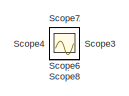
[diagram: root canvas - part 1/3, top left region]
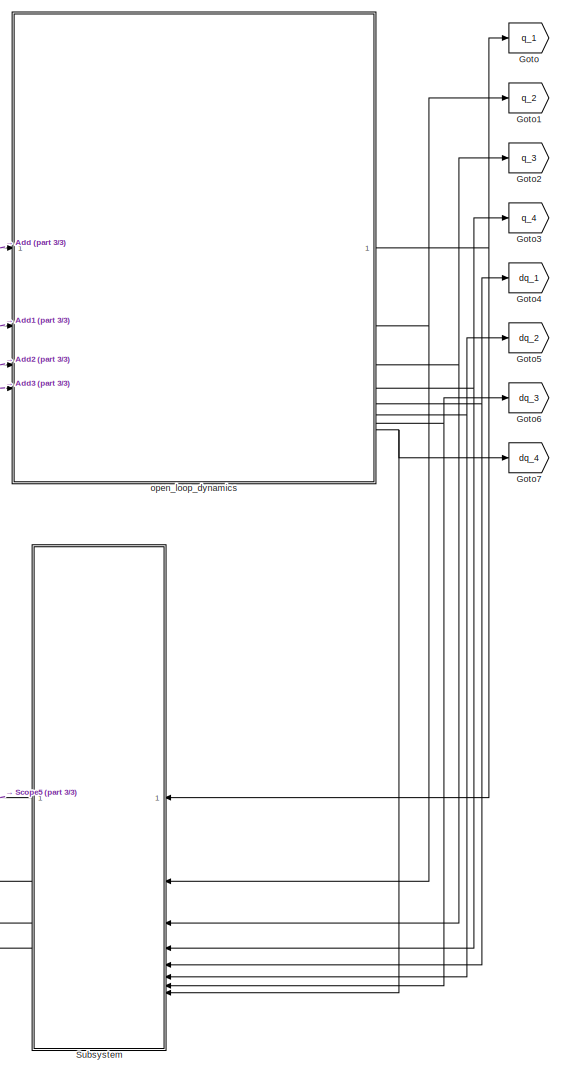
[diagram: root canvas - part 2/3, bottom right region]
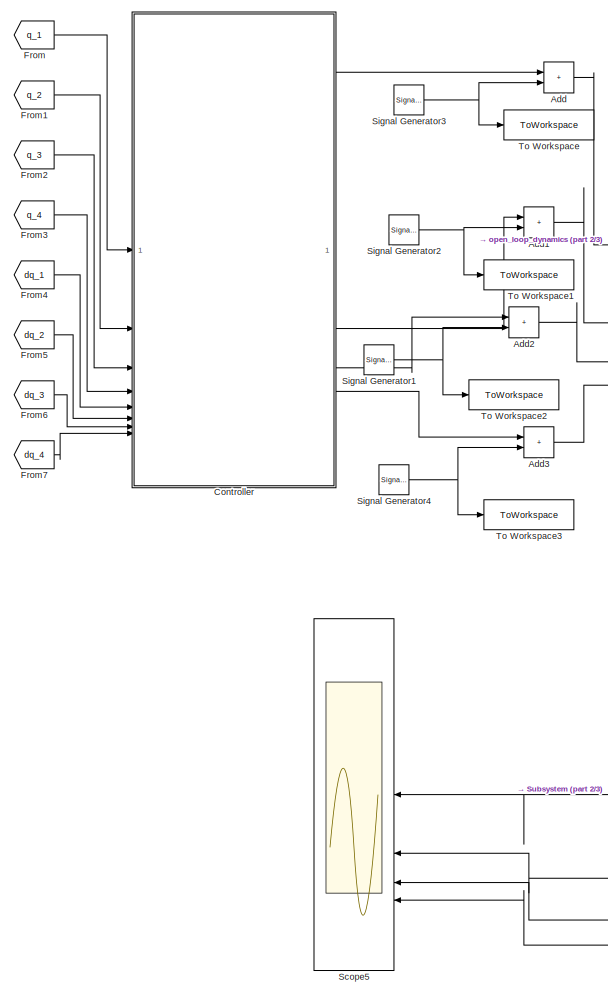
[diagram: root canvas - part 3/3, bottom left region]
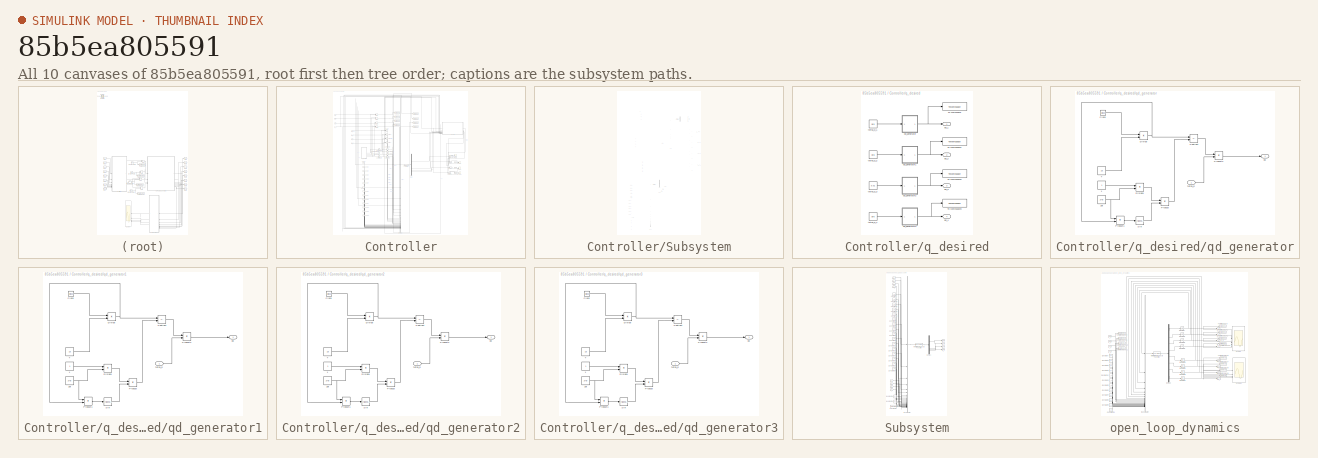
[diagram: thumbnail index - all 10 canvases of the model, root first then tree order]
MODEL slx_85b5ea805591
KIND model
CONFIG AbsTol = auto
CONFIG EnableMultiTasking = off
CONFIG FixedStep = auto
CONFIG MaxStep = auto
CONFIG MinStep = auto
CONFIG RelTol = 1e-3
CONFIG SampleTimeConstraint = Unconstrained
CONFIG SolverName = VariableStepAuto
CONFIG StartTime = 0.0
CONFIG StopTime = 10
BLOCK [Sum] Add
  IconShape = rectangular
BLOCK [Sum] Add1
  IconShape = rectangular
BLOCK [Sum] Add2
  IconShape = rectangular
BLOCK [Sum] Add3
  IconShape = rectangular
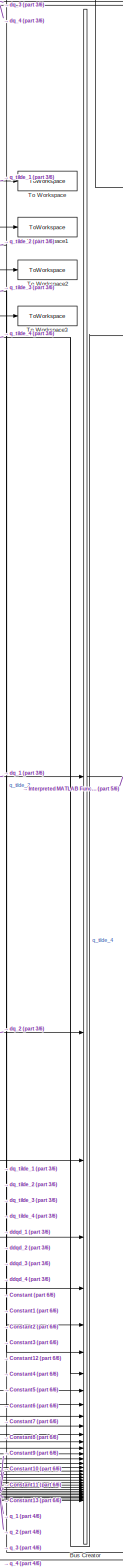
[diagram: Controller - part 1/6, center side, full height]
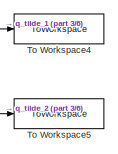
[diagram: Controller - part 2/6, top center region]
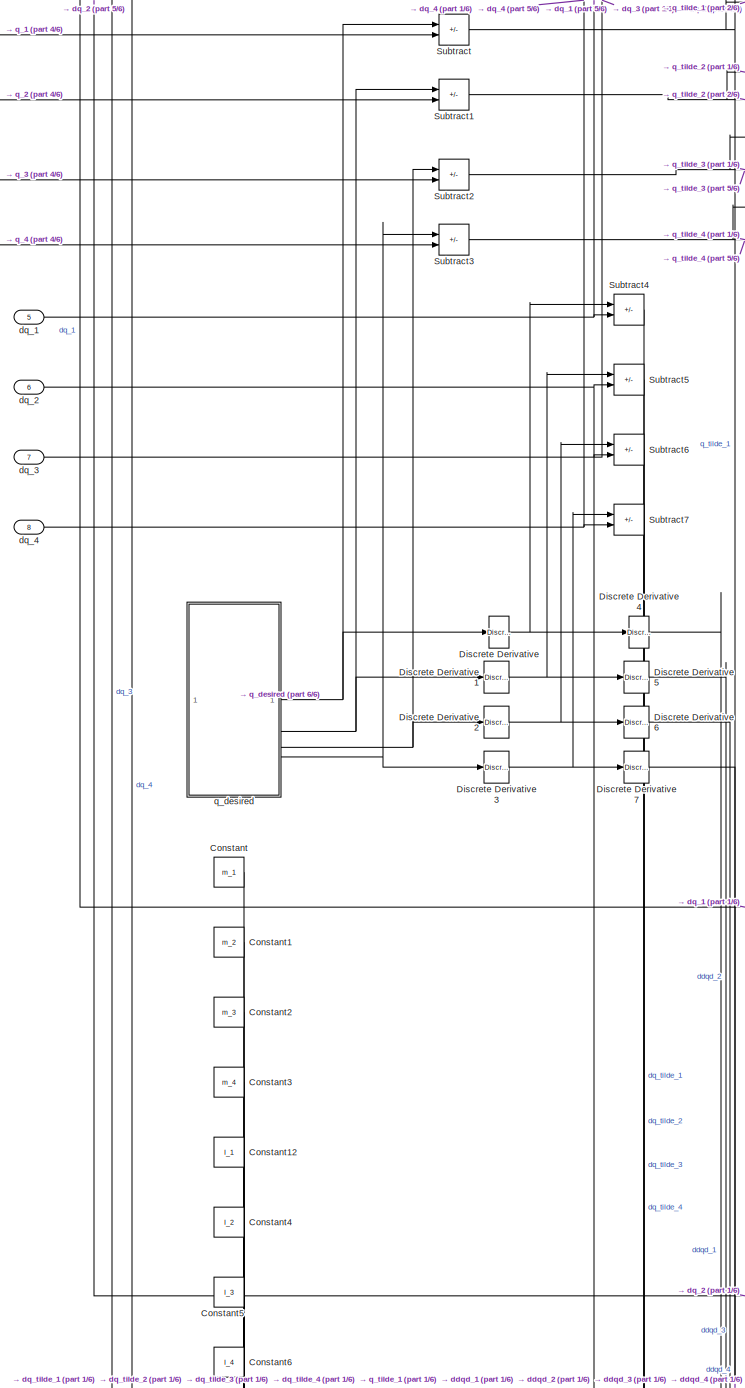
[diagram: Controller - part 3/6, middle left region]
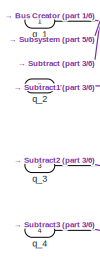
[diagram: Controller - part 4/6, top left region]
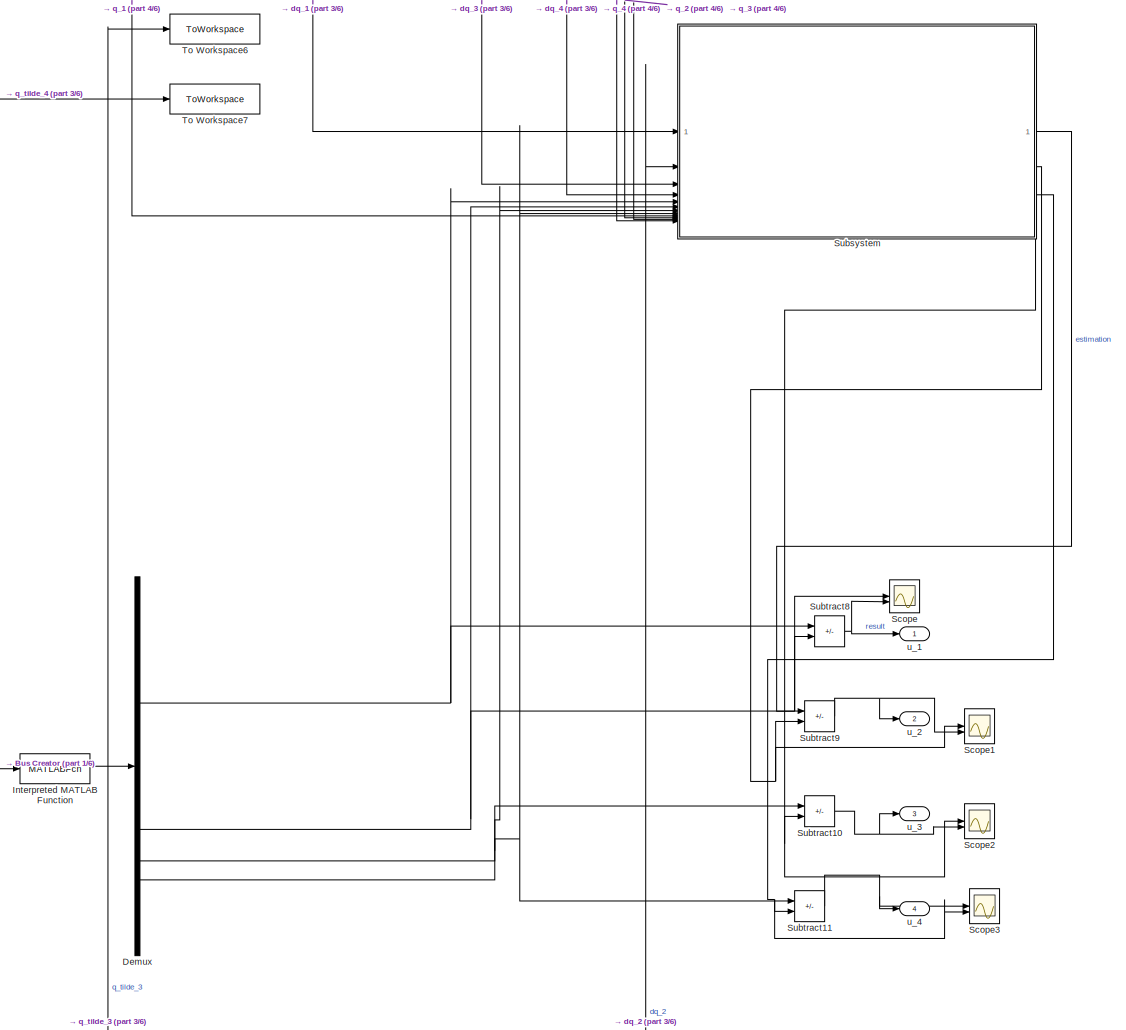
[diagram: Controller - part 5/6, middle right region]
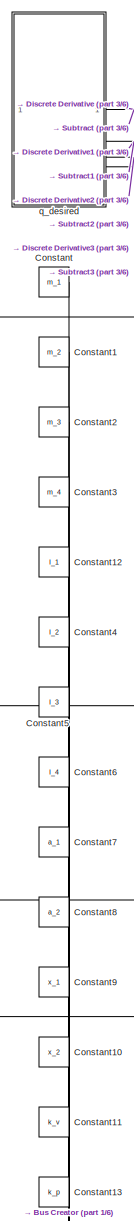
[diagram: Controller - part 6/6, middle left region]
BLOCK [SubSystem] Controller
BLOCK [BusCreator] Controller/Bus Creator
  DisplayOption = bar
  InheritFromInputs = on
  Inputs = 34
BLOCK [Constant] Controller/Constant
  Value = m_1
BLOCK [Constant] Controller/Constant1
  Value = m_2
BLOCK [Constant] Controller/Constant10
  Value = x_2
BLOCK [Constant] Controller/Constant11
  Value = k_v
BLOCK [Constant] Controller/Constant12
  Value = I_1
BLOCK [Constant] Controller/Constant13
  Value = k_p
BLOCK [Constant] Controller/Constant2
  Value = m_3
BLOCK [Constant] Controller/Constant3
  Value = m_4
BLOCK [Constant] Controller/Constant4
  Value = I_2
BLOCK [Constant] Controller/Constant5
  Value = I_3
BLOCK [Constant] Controller/Constant6
  Value = I_4
BLOCK [Constant] Controller/Constant7
  Value = a_1
BLOCK [Constant] Controller/Constant8
  Value = a_2
BLOCK [Constant] Controller/Constant9
  Value = x_1
BLOCK [Demux] Controller/Demux
BLOCK [Reference] Controller/Discrete Derivative  REF=simulink/Discrete/Discrete Derivative
  SourceBlock = simulink/Discrete/Discrete Derivative
  SourceType = Discrete Derivative
BLOCK [Reference] Controller/Discrete Derivative1  REF=simulink/Discrete/Discrete Derivative
  SourceBlock = simulink/Discrete/Discrete Derivative
  SourceType = Discrete Derivative
BLOCK [Reference] Controller/Discrete Derivative2  REF=simulink/Discrete/Discrete Derivative
  SourceBlock = simulink/Discrete/Discrete Derivative
  SourceType = Discrete Derivative
BLOCK [Reference] Controller/Discrete Derivative3  REF=simulink/Discrete/Discrete Derivative
  SourceBlock = simulink/Discrete/Discrete Derivative
  SourceType = Discrete Derivative
BLOCK [Reference] Controller/Discrete Derivative4  REF=simulink/Discrete/Discrete Derivative
  SourceBlock = simulink/Discrete/Discrete Derivative
  SourceType = Discrete Derivative
BLOCK [Reference] Controller/Discrete Derivative5  REF=simulink/Discrete/Discrete Derivative
  SourceBlock = simulink/Discrete/Discrete Derivative
  SourceType = Discrete Derivative
BLOCK [Reference] Controller/Discrete Derivative6  REF=simulink/Discrete/Discrete Derivative
  SourceBlock = simulink/Discrete/Discrete Derivative
  SourceType = Discrete Derivative
BLOCK [Reference] Controller/Discrete Derivative7  REF=simulink/Discrete/Discrete Derivative
  SourceBlock = simulink/Discrete/Discrete Derivative
  SourceType = Discrete Derivative
BLOCK [MATLABFcn] Controller/Interpreted MATLAB Function
  MATLABFcn = nonlinear_disturbance_observer_controller
BLOCK [Scope] Controller/Scope
  Floating = off
  NumInputPorts = 2
  ScopeSpecificationString = Simulink.scopes.TimeScopeBlockCfg('CurrentConfiguration', extmgr.ConfigurationSet(extmgr.Configuration('Core','General UI',true),extmgr.Configuration('Core','Source UI',true),extmgr.Configuration('Sources','WiredSimulink',true,'DataLoggingVariableName','ScopeData1'),extmgr.Configuration('Visuals','Time Domain',true,'SerializedDisplays',{struct('MinYLimReal','-11.0599','MaxYLimReal','1.99369','YLab...<+1470ch>
BLOCK [Scope] Controller/Scope1
  Floating = off
  NumInputPorts = 2
  ScopeSpecificationString = Simulink.scopes.TimeScopeBlockCfg('CurrentConfiguration', extmgr.ConfigurationSet(extmgr.Configuration('Core','General UI',true),extmgr.Configuration('Core','Source UI',true),extmgr.Configuration('Sources','WiredSimulink',true,'DataLoggingVariableName','ScopeData2'),extmgr.Configuration('Visuals','Time Domain',true,'SerializedDisplays',{struct('MinYLimReal','-0.74485','MaxYLimReal','0.84388','YLab...<+1410ch>
BLOCK [Scope] Controller/Scope2
  Floating = off
  NumInputPorts = 2
  ScopeSpecificationString = Simulink.scopes.TimeScopeBlockCfg('CurrentConfiguration', extmgr.ConfigurationSet(extmgr.Configuration('Core','General UI',true),extmgr.Configuration('Core','Source UI',true),extmgr.Configuration('Sources','WiredSimulink',true,'DataLoggingVariableName','ScopeData3'),extmgr.Configuration('Visuals','Time Domain',true,'SerializedDisplays',{struct('MinYLimReal','-66.15496','MaxYLimReal','7.35064','YLa...<+1387ch>
BLOCK [Scope] Controller/Scope3
  Floating = off
  NumInputPorts = 2
  ScopeSpecificationString = Simulink.scopes.TimeScopeBlockCfg('CurrentConfiguration', extmgr.ConfigurationSet(extmgr.Configuration('Core','General UI',true),extmgr.Configuration('Core','Source UI',true),extmgr.Configuration('Sources','WiredSimulink',true,'DataLoggingVariableName','ScopeData4'),extmgr.Configuration('Visuals','Time Domain',true,'SerializedDisplays',{struct('MinYLimReal','-104.10245','MaxYLimReal','25.64439','Y...<+1511ch>
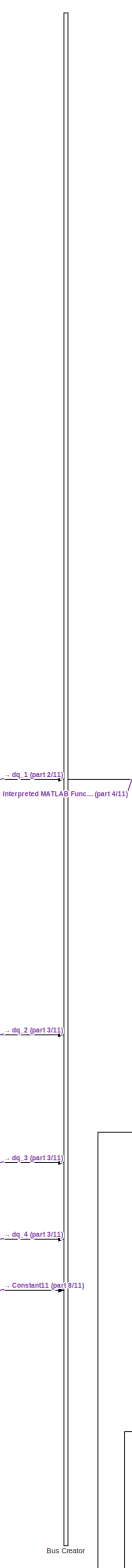
[diagram: Controller/Subsystem - part 1/11, top center region]
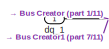
[diagram: Controller/Subsystem - part 2/11, top left region]
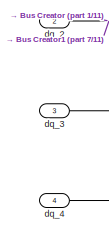
[diagram: Controller/Subsystem - part 3/11, top left region]
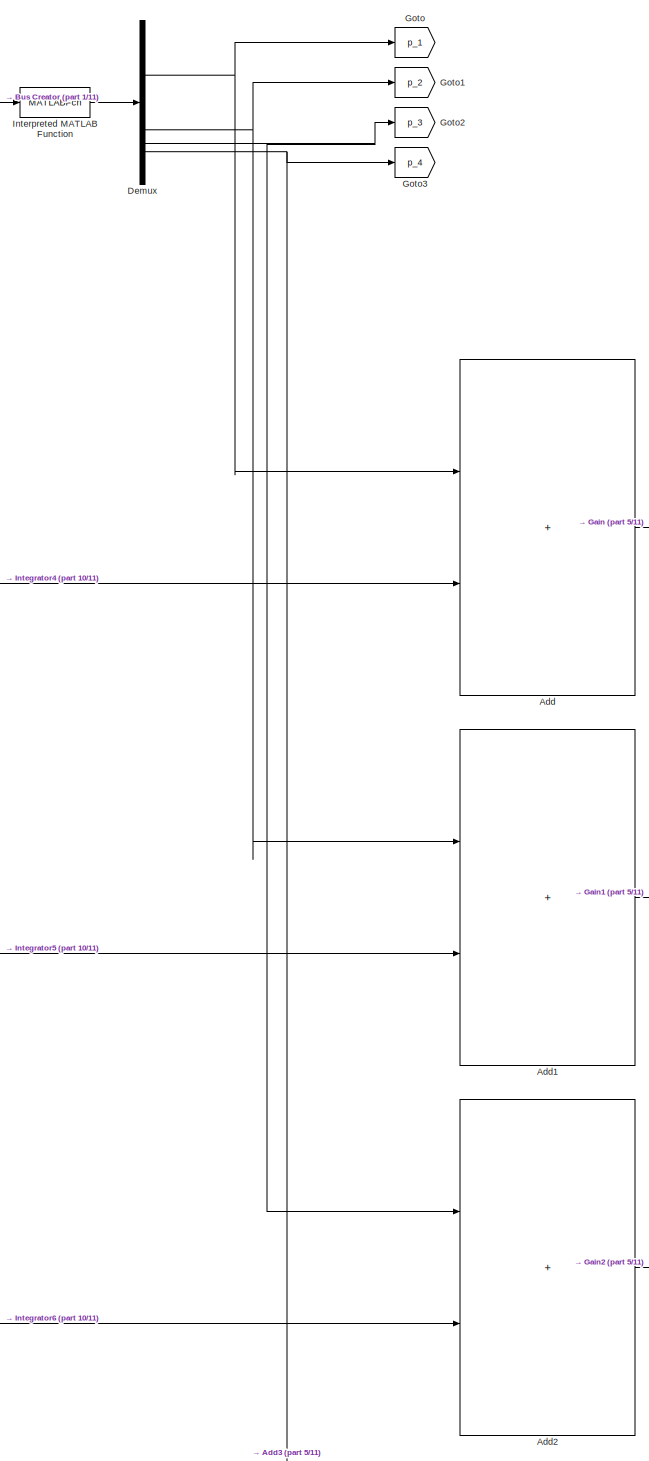
[diagram: Controller/Subsystem - part 4/11, top right region]
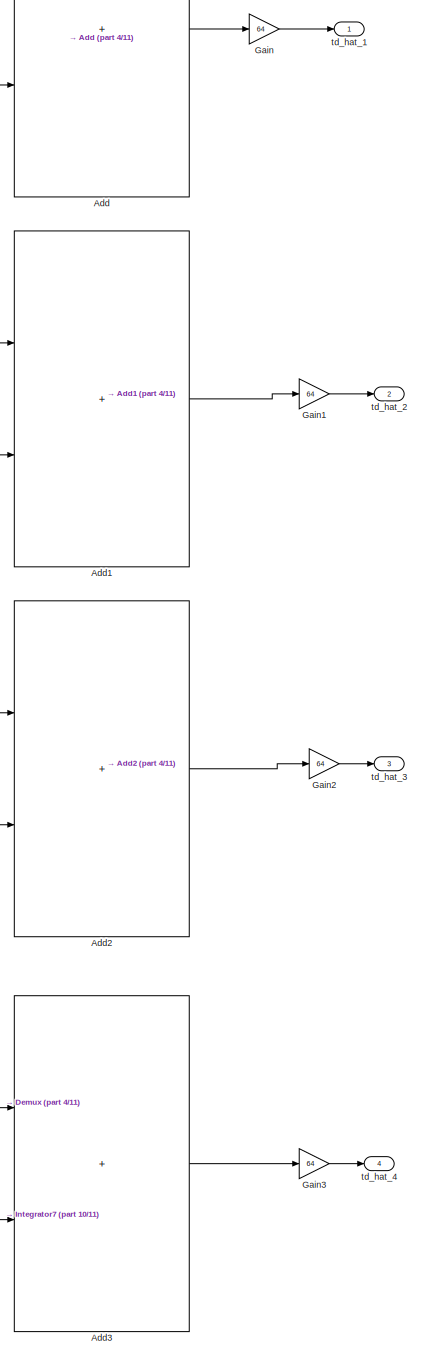
[diagram: Controller/Subsystem - part 5/11, middle right region]
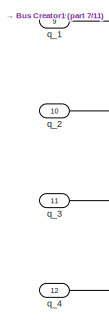
[diagram: Controller/Subsystem - part 6/11, middle left region]
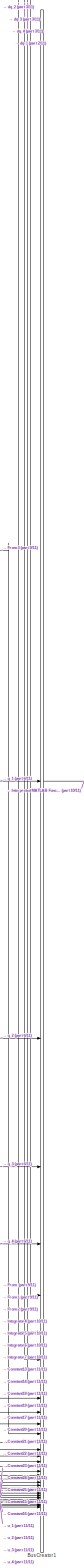
[diagram: Controller/Subsystem - part 7/11, central region]
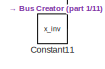
[diagram: Controller/Subsystem - part 8/11, central region]
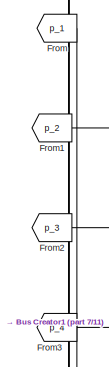
[diagram: Controller/Subsystem - part 9/11, middle left region]
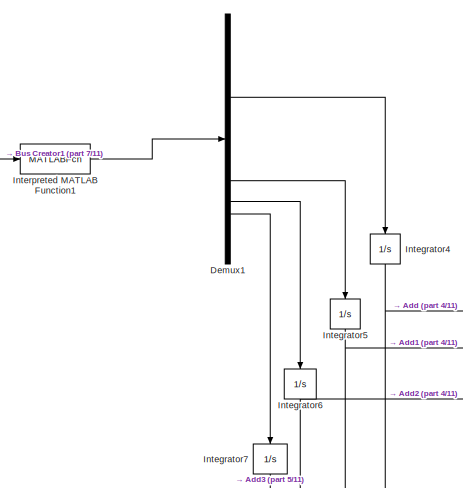
[diagram: Controller/Subsystem - part 10/11, central region]
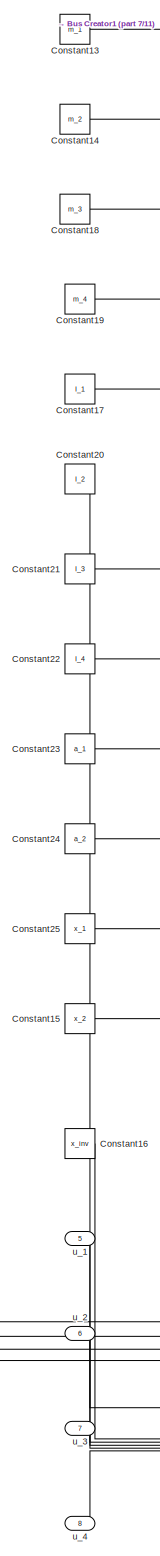
[diagram: Controller/Subsystem - part 11/11, bottom left region]
BLOCK [SubSystem] Controller/Subsystem
BLOCK [Sum] Controller/Subsystem/Add
  IconShape = rectangular
BLOCK [Sum] Controller/Subsystem/Add1
  IconShape = rectangular
BLOCK [Sum] Controller/Subsystem/Add2
  IconShape = rectangular
BLOCK [Sum] Controller/Subsystem/Add3
  IconShape = rectangular
BLOCK [BusCreator] Controller/Subsystem/Bus Creator
  DisplayOption = bar
  InheritFromInputs = on
  Inputs = 5
BLOCK [BusCreator] Controller/Subsystem/Bus Creator1
  DisplayOption = bar
  InheritFromInputs = on
  Inputs = 33
BLOCK [Constant] Controller/Subsystem/Constant11
  Value = x_inv
BLOCK [Constant] Controller/Subsystem/Constant13
  Value = m_1
BLOCK [Constant] Controller/Subsystem/Constant14
  Value = m_2
BLOCK [Constant] Controller/Subsystem/Constant15
  Value = x_2
BLOCK [Constant] Controller/Subsystem/Constant16
  Value = x_inv
BLOCK [Constant] Controller/Subsystem/Constant17
  Value = I_1
BLOCK [Constant] Controller/Subsystem/Constant18
  Value = m_3
BLOCK [Constant] Controller/Subsystem/Constant19
  Value = m_4
BLOCK [Constant] Controller/Subsystem/Constant20
  Value = I_2
BLOCK [Constant] Controller/Subsystem/Constant21
  Value = I_3
BLOCK [Constant] Controller/Subsystem/Constant22
  Value = I_4
BLOCK [Constant] Controller/Subsystem/Constant23
  Value = a_1
BLOCK [Constant] Controller/Subsystem/Constant24
  Value = a_2
BLOCK [Constant] Controller/Subsystem/Constant25
  Value = x_1
BLOCK [Demux] Controller/Subsystem/Demux
BLOCK [Demux] Controller/Subsystem/Demux1
BLOCK [From] Controller/Subsystem/From
  GotoTag = p_1
BLOCK [From] Controller/Subsystem/From1
  GotoTag = p_2
BLOCK [From] Controller/Subsystem/From2
  GotoTag = p_3
BLOCK [From] Controller/Subsystem/From3
  GotoTag = p_4
BLOCK [Gain] Controller/Subsystem/Gain
  Gain = 64
BLOCK [Gain] Controller/Subsystem/Gain1
  Gain = 64
BLOCK [Gain] Controller/Subsystem/Gain2
  Gain = 64
BLOCK [Gain] Controller/Subsystem/Gain3
  Gain = 64
BLOCK [Goto] Controller/Subsystem/Goto
  GotoTag = p_1
BLOCK [Goto] Controller/Subsystem/Goto1
  GotoTag = p_2
BLOCK [Goto] Controller/Subsystem/Goto2
  GotoTag = p_3
BLOCK [Goto] Controller/Subsystem/Goto3
  GotoTag = p_4
BLOCK [Integrator] Controller/Subsystem/Integrator4
  NameLocation = left
BLOCK [Integrator] Controller/Subsystem/Integrator5
  NameLocation = left
BLOCK [Integrator] Controller/Subsystem/Integrator6
  NameLocation = left
BLOCK [Integrator] Controller/Subsystem/Integrator7
  NameLocation = left
BLOCK [MATLABFcn] Controller/Subsystem/Interpreted MATLAB Function
  MATLABFcn = dp_calculator
BLOCK [MATLABFcn] Controller/Subsystem/Interpreted MATLAB Function1
  MATLABFcn = dz_calculator
BLOCK [Inport] Controller/Subsystem/dq_1
BLOCK [Inport] Controller/Subsystem/dq_2
  Port = 2
BLOCK [Inport] Controller/Subsystem/dq_3
  Port = 3
BLOCK [Inport] Controller/Subsystem/dq_4
  Port = 4
BLOCK [Inport] Controller/Subsystem/q_1
  Port = 9
BLOCK [Inport] Controller/Subsystem/q_2
  Port = 10
BLOCK [Inport] Controller/Subsystem/q_3
  Port = 11
BLOCK [Inport] Controller/Subsystem/q_4
  Port = 12
BLOCK [Outport] Controller/Subsystem/td_hat_1
BLOCK [Outport] Controller/Subsystem/td_hat_2
  Port = 2
BLOCK [Outport] Controller/Subsystem/td_hat_3
  Port = 3
BLOCK [Outport] Controller/Subsystem/td_hat_4
  Port = 4
BLOCK [Inport] Controller/Subsystem/u_1
  Port = 5
BLOCK [Inport] Controller/Subsystem/u_2
  Port = 6
BLOCK [Inport] Controller/Subsystem/u_3
  Port = 7
BLOCK [Inport] Controller/Subsystem/u_4
  Port = 8
BLOCK [Sum] Controller/Subtract
  IconShape = rectangular
  Inputs = +-
BLOCK [Sum] Controller/Subtract1
  IconShape = rectangular
  Inputs = +-
BLOCK [Sum] Controller/Subtract10
  IconShape = rectangular
  Inputs = +-
BLOCK [Sum] Controller/Subtract11
  IconShape = rectangular
  Inputs = +-
BLOCK [Sum] Controller/Subtract2
  IconShape = rectangular
  Inputs = +-
BLOCK [Sum] Controller/Subtract3
  IconShape = rectangular
  Inputs = +-
BLOCK [Sum] Controller/Subtract4
  IconShape = rectangular
  Inputs = +-
BLOCK [Sum] Controller/Subtract5
  IconShape = rectangular
  Inputs = +-
BLOCK [Sum] Controller/Subtract6
  IconShape = rectangular
  Inputs = +-
BLOCK [Sum] Controller/Subtract7
  IconShape = rectangular
  Inputs = +-
BLOCK [Sum] Controller/Subtract8
  IconShape = rectangular
  Inputs = +-
BLOCK [Sum] Controller/Subtract9
  IconShape = rectangular
  Inputs = +-
BLOCK [ToWorkspace] Controller/To Workspace
  FixptAsFi = on
  MaxDataPoints = inf
  SampleTime = -1
  SaveFormat = Timeseries
  VariableName = q_tilde_1
BLOCK [ToWorkspace] Controller/To Workspace1
  FixptAsFi = on
  MaxDataPoints = inf
  SampleTime = -1
  SaveFormat = Timeseries
  VariableName = q_tilde_2
BLOCK [ToWorkspace] Controller/To Workspace2
  FixptAsFi = on
  MaxDataPoints = inf
  SampleTime = -1
  SaveFormat = Timeseries
  VariableName = q_tilde_3
BLOCK [ToWorkspace] Controller/To Workspace3
  FixptAsFi = on
  MaxDataPoints = inf
  SampleTime = -1
  SaveFormat = Timeseries
  VariableName = q_tilde_4
BLOCK [ToWorkspace] Controller/To Workspace4
  FixptAsFi = on
  MaxDataPoints = inf
  SampleTime = -1
  Save2DSignal = 2-D array (concatenate along first dimension)
  VariableName = rms1
BLOCK [ToWorkspace] Controller/To Workspace5
  FixptAsFi = on
  MaxDataPoints = inf
  SampleTime = -1
  Save2DSignal = 2-D array (concatenate along first dimension)
  VariableName = rms2
BLOCK [ToWorkspace] Controller/To Workspace6
  FixptAsFi = on
  MaxDataPoints = inf
  SampleTime = -1
  Save2DSignal = 2-D array (concatenate along first dimension)
  VariableName = rms3
BLOCK [ToWorkspace] Controller/To Workspace7
  FixptAsFi = on
  MaxDataPoints = inf
  SampleTime = -1
  Save2DSignal = 2-D array (concatenate along first dimension)
  VariableName = rms4
BLOCK [Inport] Controller/dq_1
  Port = 5
BLOCK [Inport] Controller/dq_2
  Port = 6
BLOCK [Inport] Controller/dq_3
  Port = 7
BLOCK [Inport] Controller/dq_4
  Port = 8
BLOCK [Inport] Controller/q_1
BLOCK [Inport] Controller/q_2
  Port = 2
BLOCK [Inport] Controller/q_3
  Port = 3
BLOCK [Inport] Controller/q_4
  Port = 4
BLOCK [SubSystem] Controller/q_desired
BLOCK [ToWorkspace] Controller/q_desired/To Workspace
  FixptAsFi = on
  MaxDataPoints = inf
  SampleTime = -1
  SaveFormat = Timeseries
  VariableName = qd_1
BLOCK [ToWorkspace] Controller/q_desired/To Workspace1
  FixptAsFi = on
  MaxDataPoints = inf
  SampleTime = -1
  SaveFormat = Timeseries
  VariableName = qd_2
BLOCK [ToWorkspace] Controller/q_desired/To Workspace2
  FixptAsFi = on
  MaxDataPoints = inf
  SampleTime = -1
  SaveFormat = Timeseries
  VariableName = qd_3
BLOCK [ToWorkspace] Controller/q_desired/To Workspace3
  FixptAsFi = on
  MaxDataPoints = inf
  SampleTime = -1
  SaveFormat = Timeseries
  VariableName = qd_4
BLOCK [Outport] Controller/q_desired/qd_1
BLOCK [Outport] Controller/q_desired/qd_2
  Port = 2
BLOCK [Outport] Controller/q_desired/qd_3
  Port = 3
BLOCK [Outport] Controller/q_desired/qd_4
  Port = 4
BLOCK [SubSystem] Controller/q_desired/qd_generator
BLOCK [Constant] Controller/q_desired/qd_generator/1
BLOCK [Constant] Controller/q_desired/qd_generator/2pi
  Value = 2*pi
BLOCK [Clock] Controller/q_desired/qd_generator/Clock
BLOCK [Product] Controller/q_desired/qd_generator/Divide
  Inputs = */
BLOCK [Product] Controller/q_desired/qd_generator/Divide1
  Inputs = */
BLOCK [Product] Controller/q_desired/qd_generator/Product
BLOCK [Product] Controller/q_desired/qd_generator/Product1
BLOCK [Product] Controller/q_desired/qd_generator/Product2
BLOCK [Trigonometry] Controller/q_desired/qd_generator/Sin
BLOCK [Sum] Controller/q_desired/qd_generator/Subtract
  IconShape = rectangular
  Inputs = +-
BLOCK [Constant] Controller/q_desired/qd_generator/T
  Value = 10
BLOCK [Outport] Controller/q_desired/qd_generator/qd
BLOCK [Inport] Controller/q_desired/qd_generator/tetha_d
BLOCK [SubSystem] Controller/q_desired/qd_generator1
BLOCK [Constant] Controller/q_desired/qd_generator1/1
BLOCK [Constant] Controller/q_desired/qd_generator1/2pi
  Value = 2*pi
BLOCK [Clock] Controller/q_desired/qd_generator1/Clock
BLOCK [Product] Controller/q_desired/qd_generator1/Divide
  Inputs = */
BLOCK [Product] Controller/q_desired/qd_generator1/Divide1
  Inputs = */
BLOCK [Product] Controller/q_desired/qd_generator1/Product
BLOCK [Product] Controller/q_desired/qd_generator1/Product1
BLOCK [Product] Controller/q_desired/qd_generator1/Product2
BLOCK [Trigonometry] Controller/q_desired/qd_generator1/Sin
BLOCK [Sum] Controller/q_desired/qd_generator1/Subtract
  IconShape = rectangular
  Inputs = +-
BLOCK [Constant] Controller/q_desired/qd_generator1/T
  Value = 10
BLOCK [Outport] Controller/q_desired/qd_generator1/qd
BLOCK [Inport] Controller/q_desired/qd_generator1/tetha_d
BLOCK [SubSystem] Controller/q_desired/qd_generator2
BLOCK [Constant] Controller/q_desired/qd_generator2/1
BLOCK [Constant] Controller/q_desired/qd_generator2/2pi
  Value = 2*pi
BLOCK [Clock] Controller/q_desired/qd_generator2/Clock
BLOCK [Product] Controller/q_desired/qd_generator2/Divide
  Inputs = */
BLOCK [Product] Controller/q_desired/qd_generator2/Divide1
  Inputs = */
BLOCK [Product] Controller/q_desired/qd_generator2/Product
BLOCK [Product] Controller/q_desired/qd_generator2/Product1
BLOCK [Product] Controller/q_desired/qd_generator2/Product2
BLOCK [Trigonometry] Controller/q_desired/qd_generator2/Sin
BLOCK [Sum] Controller/q_desired/qd_generator2/Subtract
  IconShape = rectangular
  Inputs = +-
BLOCK [Constant] Controller/q_desired/qd_generator2/T
  Value = 10
BLOCK [Outport] Controller/q_desired/qd_generator2/qd
BLOCK [Inport] Controller/q_desired/qd_generator2/tetha_d
BLOCK [SubSystem] Controller/q_desired/qd_generator3
BLOCK [Constant] Controller/q_desired/qd_generator3/1
BLOCK [Constant] Controller/q_desired/qd_generator3/2pi
  Value = 2*pi
BLOCK [Clock] Controller/q_desired/qd_generator3/Clock
BLOCK [Product] Controller/q_desired/qd_generator3/Divide
  Inputs = */
BLOCK [Product] Controller/q_desired/qd_generator3/Divide1
  Inputs = */
BLOCK [Product] Controller/q_desired/qd_generator3/Product
BLOCK [Product] Controller/q_desired/qd_generator3/Product1
BLOCK [Product] Controller/q_desired/qd_generator3/Product2
BLOCK [Trigonometry] Controller/q_desired/qd_generator3/Sin
BLOCK [Sum] Controller/q_desired/qd_generator3/Subtract
  IconShape = rectangular
  Inputs = +-
BLOCK [Constant] Controller/q_desired/qd_generator3/T
  Value = 10
BLOCK [Outport] Controller/q_desired/qd_generator3/qd
BLOCK [Inport] Controller/q_desired/qd_generator3/tetha_d
BLOCK [Constant] Controller/q_desired/tetha_d_1
  Value = pi/5
BLOCK [Constant] Controller/q_desired/tetha_d_2
  Value = pi/8
BLOCK [Constant] Controller/q_desired/tetha_d_3
  Value = 0.01
BLOCK [Constant] Controller/q_desired/tetha_d_4
  Value = pi/6
BLOCK [Outport] Controller/u_1
BLOCK [Outport] Controller/u_2
  Port = 2
BLOCK [Outport] Controller/u_3
  Port = 3
BLOCK [Outport] Controller/u_4
  Port = 4
BLOCK [From] From
  GotoTag = q_1
BLOCK [From] From1
  GotoTag = q_2
BLOCK [From] From2
  GotoTag = q_3
BLOCK [From] From3
  GotoTag = q_4
BLOCK [From] From4
  GotoTag = dq_1
BLOCK [From] From5
  GotoTag = dq_2
BLOCK [From] From6
  GotoTag = dq_3
BLOCK [From] From7
  GotoTag = dq_4
BLOCK [Goto] Goto
  GotoTag = q_1
BLOCK [Goto] Goto1
  GotoTag = q_2
BLOCK [Goto] Goto2
  GotoTag = q_3
BLOCK [Goto] Goto3
  GotoTag = q_4
BLOCK [Goto] Goto4
  GotoTag = dq_1
BLOCK [Goto] Goto5
  GotoTag = dq_2
BLOCK [Goto] Goto6
  GotoTag = dq_3
BLOCK [Goto] Goto7
  GotoTag = dq_4
BLOCK [Scope] Scope
  Floating = off
  IOType = viewer
  NumInputPorts = 1
  ScopeSpecificationString = Simulink.scopes.TimeScopeBlockCfg('CurrentConfiguration', extmgr.ConfigurationSet(extmgr.Configuration('Core','General UI',true),extmgr.Configuration('Core','Source UI',true),extmgr.Configuration('Sources','WiredSimulink',true,'DataLoggingVariableName','ScopeData5'),extmgr.Configuration('Visuals','Time Domain',true,'SerializedDisplays',{struct('MinYLimReal','-0.025','MaxYLimReal','0.225','YLabelRe...<+1423ch>
BLOCK [Scope] Scope1
  Floating = off
  IOType = viewer
  NumInputPorts = 1
  ScopeSpecificationString = Simulink.scopes.TimeScopeBlockCfg('CurrentConfiguration', extmgr.ConfigurationSet(extmgr.Configuration('Core','General UI',true),extmgr.Configuration('Core','Source UI',true),extmgr.Configuration('Sources','WiredSimulink',true,'DataLoggingVariableName','ScopeData6'),extmgr.Configuration('Visuals','Time Domain',true,'SerializedDisplays',{struct('MinYLimReal','-0.01884','MaxYLimReal','0.14527','YLab...<+1379ch>
BLOCK [Scope] Scope2
  Floating = off
  IOType = viewer
  NumInputPorts = 1
  ScopeSpecificationString = Simulink.scopes.TimeScopeBlockCfg('CurrentConfiguration', extmgr.ConfigurationSet(extmgr.Configuration('Core','General UI',true),extmgr.Configuration('Core','Source UI',true),extmgr.Configuration('Sources','WiredSimulink',true,'DataLoggingVariableName','ScopeData7'),extmgr.Configuration('Visuals','Time Domain',true,'SerializedDisplays',{struct('MinYLimReal','-0.01295','MaxYLimReal','0.08994','YLab...<+1379ch>
BLOCK [Scope] Scope3
  Floating = off
  IOType = viewer
  NumInputPorts = 1
  ScopeSpecificationString = Simulink.scopes.TimeScopeBlockCfg('CurrentConfiguration', extmgr.ConfigurationSet(extmgr.Configuration('Core','General UI',true),extmgr.Configuration('Core','Source UI',true),extmgr.Configuration('Sources','WiredSimulink',true,'DataLoggingVariableName','ScopeData8'),extmgr.Configuration('Visuals','Time Domain',true,'SerializedDisplays',{struct('MinYLimReal','-1.10493','MaxYLimReal','0.80833','YLab...<+1405ch>
BLOCK [Scope] Scope4
  Floating = off
  IOType = viewer
  NumInputPorts = 1
  ScopeSpecificationString = Simulink.scopes.TimeScopeBlockCfg('CurrentConfiguration', extmgr.ConfigurationSet(extmgr.Configuration('Core','General UI',true),extmgr.Configuration('Core','Source UI',true),extmgr.Configuration('Sources','WiredSimulink',true,'DataLoggingVariableName','ScopeData9'),extmgr.Configuration('Visuals','Time Domain',true,'SerializedDisplays',{struct('MinYLimReal','-0.91561','MaxYLimReal','0.92207','YLab...<+1392ch>
BLOCK [Scope] Scope5
  Floating = off
  NameLocation = top
  NumInputPorts = 4
  ScopeSpecificationString = Simulink.scopes.TimeScopeBlockCfg('CurrentConfiguration', extmgr.ConfigurationSet(extmgr.Configuration('Core','General UI',true),extmgr.Configuration('Core','Source UI',true),extmgr.Configuration('Sources','WiredSimulink',true,'DataLoggingVariableName','ScopeData1'),extmgr.Configuration('Visuals','Time Domain',true,'SerializedDisplays',{struct('MinYLimReal','-4.37508','MaxYLimReal','4.37508','YLab...<+1531ch>
BLOCK [Scope] Scope6
  Floating = off
  IOType = viewer
  NumInputPorts = 1
  ScopeSpecificationString = Simulink.scopes.TimeScopeBlockCfg('CurrentConfiguration', extmgr.ConfigurationSet(extmgr.Configuration('Core','General UI',true),extmgr.Configuration('Core','Source UI',true),extmgr.Configuration('Sources','WiredSimulink',true,'DataLoggingVariableName','ScopeData2'),extmgr.Configuration('Visuals','Time Domain',true,'SerializedDisplays',{struct('MinYLimReal','-0.0003','MaxYLimReal','0.0023','YLabel...<+1373ch>
BLOCK [Scope] Scope7
  Floating = off
  IOType = viewer
  NumInputPorts = 1
  ScopeSpecificationString = Simulink.scopes.TimeScopeBlockCfg('CurrentConfiguration', extmgr.ConfigurationSet(extmgr.Configuration('Core','General UI',true),extmgr.Configuration('Core','Source UI',true),extmgr.Configuration('Sources','WiredSimulink',true,'DataLoggingVariableName','ScopeData3'),extmgr.Configuration('Visuals','Time Domain',true,'SerializedDisplays',{struct('MinYLimReal','-0.01668','MaxYLimReal','0.12053','YLab...<+1379ch>
BLOCK [Scope] Scope8
  Floating = off
  IOType = viewer
  NumInputPorts = 1
  ScopeSpecificationString = Simulink.scopes.TimeScopeBlockCfg('CurrentConfiguration', extmgr.ConfigurationSet(extmgr.Configuration('Core','General UI',true),extmgr.Configuration('Core','Source UI',true),extmgr.Configuration('Sources','WiredSimulink',true,'DataLoggingVariableName','ScopeData4'),extmgr.Configuration('Visuals','Time Domain',true,'SerializedDisplays',{struct('MinYLimReal','-0.35879','MaxYLimReal','0.36995','YLab...<+1362ch>
BLOCK [SignalGenerator] Signal Generator1
  Amplitude = 0
  Frequency = 18
  Units = rad/sec
BLOCK [SignalGenerator] Signal Generator2
  Amplitude = -0.4
  Frequency = 0.8
  Units = rad/sec
BLOCK [SignalGenerator] Signal Generator3
  Amplitude = 0.2
  Frequency = 0.27
  Units = rad/sec
BLOCK [SignalGenerator] Signal Generator4
  Amplitude = 0
  Frequency = 4
  Units = rad/sec
BLOCK [SubSystem] Subsystem
  NameLocation = top
BLOCK [BusCreator] Subsystem/Bus Creator
  DisplayOption = bar
  InheritFromInputs = on
  Inputs = 27
BLOCK [Constant] Subsystem/Constant
  Value = f_c1
BLOCK [Constant] Subsystem/Constant1
  Value = f_c2
BLOCK [Constant] Subsystem/Constant10
  Value = f_v3
BLOCK [Constant] Subsystem/Constant11
  Value = f_v4
BLOCK [Constant] Subsystem/Constant12
  Value = v_s3
BLOCK [Constant] Subsystem/Constant13
  Value = v_s4
BLOCK [Constant] Subsystem/Constant14
  Value = v_s1
BLOCK [Constant] Subsystem/Constant15
  Value = v_s2
BLOCK [Constant] Subsystem/Constant16
  Value = a_2
BLOCK [Constant] Subsystem/Constant17
  Value = f_payload
BLOCK [Constant] Subsystem/Constant18
  Value = a_1
BLOCK [Constant] Subsystem/Constant2
  Value = f_c3
BLOCK [Constant] Subsystem/Constant3
  Value = f_c4
BLOCK [Constant] Subsystem/Constant4
  Value = f_s1
BLOCK [Constant] Subsystem/Constant5
  Value = f_s2
BLOCK [Constant] Subsystem/Constant6
  Value = f_s3
BLOCK [Constant] Subsystem/Constant7
  Value = f_s4
BLOCK [Constant] Subsystem/Constant8
  Value = f_v1
BLOCK [Constant] Subsystem/Constant9
  Value = f_v2
BLOCK [Demux] Subsystem/Demux
BLOCK [MATLABFcn] Subsystem/Interpreted MATLAB Function
  MATLABFcn = disturbance_torque_generator
BLOCK [Inport] Subsystem/dq_1
  Port = 5
BLOCK [Inport] Subsystem/dq_2
  Port = 6
BLOCK [Inport] Subsystem/dq_3
  Port = 7
BLOCK [Inport] Subsystem/dq_4
  Port = 8
BLOCK [Inport] Subsystem/q_1
BLOCK [Inport] Subsystem/q_2
  Port = 2
BLOCK [Inport] Subsystem/q_3
  Port = 3
BLOCK [Inport] Subsystem/q_4
  Port = 4
BLOCK [Outport] Subsystem/td_1
BLOCK [Outport] Subsystem/td_2
  Port = 2
BLOCK [Outport] Subsystem/td_3
  Port = 3
BLOCK [Outport] Subsystem/td_4
  Port = 4
BLOCK [ToWorkspace] To Workspace
  FixptAsFi = on
  MaxDataPoints = inf
  SampleTime = -1
  SaveFormat = Timeseries
  VariableName = td_1
BLOCK [ToWorkspace] To Workspace1
  FixptAsFi = on
  MaxDataPoints = inf
  SampleTime = -1
  SaveFormat = Timeseries
  VariableName = td_2
BLOCK [ToWorkspace] To Workspace2
  FixptAsFi = on
  MaxDataPoints = inf
  SampleTime = -1
  SaveFormat = Timeseries
  VariableName = td_3
BLOCK [ToWorkspace] To Workspace3
  FixptAsFi = on
  MaxDataPoints = inf
  SampleTime = -1
  SaveFormat = Timeseries
  VariableName = td_4
BLOCK [SubSystem] open_loop_dynamics
BLOCK [BusCreator] open_loop_dynamics/Bus Creator
  DisplayOption = bar
  InheritFromInputs = on
  Inputs = 24
BLOCK [Constant] open_loop_dynamics/Constant
  Value = m_1
BLOCK [Constant] open_loop_dynamics/Constant1
  Value = m_2
BLOCK [Constant] open_loop_dynamics/Constant10
  Value = x_2
BLOCK [Constant] open_loop_dynamics/Constant12
  Value = I_1
BLOCK [Constant] open_loop_dynamics/Constant2
  Value = m_3
BLOCK [Constant] open_loop_dynamics/Constant3
  Value = m_4
BLOCK [Constant] open_loop_dynamics/Constant4
  Value = I_2
BLOCK [Constant] open_loop_dynamics/Constant5
  Value = I_3
BLOCK [Constant] open_loop_dynamics/Constant6
  Value = I_4
BLOCK [Constant] open_loop_dynamics/Constant7
  Value = a_1
BLOCK [Constant] open_loop_dynamics/Constant8
  Value = a_2
BLOCK [Constant] open_loop_dynamics/Constant9
  Value = x_1
BLOCK [Demux] open_loop_dynamics/Demux
  Outputs = 8
BLOCK [Integrator] open_loop_dynamics/Integrator
BLOCK [Integrator] open_loop_dynamics/Integrator1
BLOCK [Integrator] open_loop_dynamics/Integrator2
BLOCK [Integrator] open_loop_dynamics/Integrator3
BLOCK [Integrator] open_loop_dynamics/Integrator4
BLOCK [Integrator] open_loop_dynamics/Integrator5
BLOCK [Integrator] open_loop_dynamics/Integrator6
BLOCK [Integrator] open_loop_dynamics/Integrator7
BLOCK [MATLABFcn] open_loop_dynamics/Interpreted MATLAB Function
  MATLABFcn = open_loop_dynamics
BLOCK [Scope] open_loop_dynamics/Scope
  Floating = off
  NumInputPorts = 4
  ScopeSpecificationString = Simulink.scopes.TimeScopeBlockCfg('CurrentConfiguration', extmgr.ConfigurationSet(extmgr.Configuration('Core','General UI',true),extmgr.Configuration('Core','Source UI',true),extmgr.Configuration('Sources','WiredSimulink',true,'DataLoggingSaveFormat','StructureWithTime','DataLoggingDecimation','1','DataLoggingDecimateData',true),extmgr.Configuration('Visuals','Time Domain',true,'SerializedDisplays...<+3704ch>
BLOCK [Scope] open_loop_dynamics/Scope1
  Floating = off
  NumInputPorts = 4
  ScopeSpecificationString = Simulink.scopes.TimeScopeBlockCfg('CurrentConfiguration', extmgr.ConfigurationSet(extmgr.Configuration('Core','General UI',true),extmgr.Configuration('Core','Source UI',true),extmgr.Configuration('Sources','WiredSimulink',true,'DataLoggingSaveFormat','StructureWithTime','DataLoggingDecimation','1','DataLoggingDecimateData',true,'DataLoggingVariableName','ScopeData1'),extmgr.Configuration('Visuals'...<+3744ch>
BLOCK [ToWorkspace] open_loop_dynamics/To Workspace
  MaxDataPoints = inf
  SampleTime = -1
  VariableName = q_1
BLOCK [ToWorkspace] open_loop_dynamics/To Workspace1
  MaxDataPoints = inf
  SampleTime = -1
  VariableName = q_2
BLOCK [ToWorkspace] open_loop_dynamics/To Workspace10
  MaxDataPoints = inf
  SampleTime = -1
  VariableName = u_3
BLOCK [ToWorkspace] open_loop_dynamics/To Workspace11
  MaxDataPoints = inf
  SampleTime = -1
  VariableName = u_4
BLOCK [ToWorkspace] open_loop_dynamics/To Workspace2
  MaxDataPoints = inf
  SampleTime = -1
  VariableName = q_3
BLOCK [ToWorkspace] open_loop_dynamics/To Workspace3
  MaxDataPoints = inf
  SampleTime = -1
  VariableName = q_4
BLOCK [ToWorkspace] open_loop_dynamics/To Workspace4
  MaxDataPoints = inf
  SampleTime = -1
  VariableName = u_1
BLOCK [ToWorkspace] open_loop_dynamics/To Workspace5
  MaxDataPoints = inf
  SampleTime = -1
  VariableName = u_2
BLOCK [ToWorkspace] open_loop_dynamics/To Workspace6
  MaxDataPoints = inf
  SampleTime = -1
  VariableName = dq_1
BLOCK [ToWorkspace] open_loop_dynamics/To Workspace7
  MaxDataPoints = inf
  SampleTime = -1
  VariableName = dq_2
BLOCK [ToWorkspace] open_loop_dynamics/To Workspace8
  MaxDataPoints = inf
  SampleTime = -1
  VariableName = dq_3
BLOCK [ToWorkspace] open_loop_dynamics/To Workspace9
  MaxDataPoints = inf
  SampleTime = -1
  VariableName = dq_4
BLOCK [Outport] open_loop_dynamics/dq_1
  Port = 5
BLOCK [Outport] open_loop_dynamics/dq_2
  Port = 6
BLOCK [Outport] open_loop_dynamics/dq_3
  Port = 7
BLOCK [Outport] open_loop_dynamics/dq_4
  Port = 8
BLOCK [Outport] open_loop_dynamics/q_1
BLOCK [Outport] open_loop_dynamics/q_2
  Port = 2
BLOCK [Outport] open_loop_dynamics/q_3
  Port = 3
BLOCK [Outport] open_loop_dynamics/q_4
  Port = 4
BLOCK [Inport] open_loop_dynamics/u_1
BLOCK [Inport] open_loop_dynamics/u_2
  Port = 2
BLOCK [Inport] open_loop_dynamics/u_3
  Port = 3
BLOCK [Inport] open_loop_dynamics/u_4
  Port = 4
LINE Add1:1 -> open_loop_dynamics:2
LINE Add2:1 -> open_loop_dynamics:3
LINE Add3:1 -> open_loop_dynamics:4
LINE Add:1 -> open_loop_dynamics:1
LINE Controller/Bus Creator:1 -> Controller/Interpreted MATLAB Function:1
LINE Controller/Constant10:1 -> Controller/Bus Creator:28
LINE Controller/Constant11:1 -> Controller/Bus Creator:29
LINE Controller/Constant12:1 -> Controller/Bus Creator:21
LINE Controller/Constant13:1 -> Controller/Bus Creator:30
LINE Controller/Constant1:1 -> Controller/Bus Creator:18
LINE Controller/Constant2:1 -> Controller/Bus Creator:19
LINE Controller/Constant3:1 -> Controller/Bus Creator:20
LINE Controller/Constant4:1 -> Controller/Bus Creator:22
LINE Controller/Constant5:1 -> Controller/Bus Creator:23
LINE Controller/Constant6:1 -> Controller/Bus Creator:24
LINE Controller/Constant7:1 -> Controller/Bus Creator:25
LINE Controller/Constant8:1 -> Controller/Bus Creator:26
LINE Controller/Constant9:1 -> Controller/Bus Creator:27
LINE Controller/Constant:1 -> Controller/Bus Creator:17
NET Controller/Demux:1 -> Controller/Subsystem:5, Controller/Subtract8:1
NET Controller/Demux:2 -> Controller/Subsystem:6, Controller/Subtract9:1
NET Controller/Demux:3 -> Controller/Subsystem:7, Controller/Subtract10:1
NET Controller/Demux:4 -> Controller/Subsystem:8, Controller/Subtract11:1
NET Controller/Discrete Derivative1:1 -> Controller/Discrete Derivative5:1, Controller/Subtract5:1
NET Controller/Discrete Derivative2:1 -> Controller/Discrete Derivative6:1, Controller/Subtract6:1
NET Controller/Discrete Derivative3:1 -> Controller/Discrete Derivative7:1, Controller/Subtract7:1
LINE Controller/Discrete Derivative4:1 -> Controller/Bus Creator:13
LINE Controller/Discrete Derivative5:1 -> Controller/Bus Creator:14
LINE Controller/Discrete Derivative6:1 -> Controller/Bus Creator:15
LINE Controller/Discrete Derivative7:1 -> Controller/Bus Creator:16
NET Controller/Discrete Derivative:1 -> Controller/Discrete Derivative4:1, Controller/Subtract4:1
LINE Controller/Interpreted MATLAB Function:1 -> Controller/Demux:1
LINE Controller/Subsystem/Add1:1 -> Controller/Subsystem/Gain1:1
LINE Controller/Subsystem/Add2:1 -> Controller/Subsystem/Gain2:1
LINE Controller/Subsystem/Add3:1 -> Controller/Subsystem/Gain3:1
LINE Controller/Subsystem/Add:1 -> Controller/Subsystem/Gain:1
LINE Controller/Subsystem/Bus Creator1:1 -> Controller/Subsystem/Interpreted MATLAB Function1:1
LINE Controller/Subsystem/Bus Creator:1 -> Controller/Subsystem/Interpreted MATLAB Function:1
LINE Controller/Subsystem/Constant11:1 -> Controller/Subsystem/Bus Creator:5
LINE Controller/Subsystem/Constant13:1 -> Controller/Subsystem/Bus Creator1:17
LINE Controller/Subsystem/Constant14:1 -> Controller/Subsystem/Bus Creator1:18
LINE Controller/Subsystem/Constant15:1 -> Controller/Subsystem/Bus Creator1:28
LINE Controller/Subsystem/Constant16:1 -> Controller/Subsystem/Bus Creator1:29
LINE Controller/Subsystem/Constant17:1 -> Controller/Subsystem/Bus Creator1:21
LINE Controller/Subsystem/Constant18:1 -> Controller/Subsystem/Bus Creator1:19
LINE Controller/Subsystem/Constant19:1 -> Controller/Subsystem/Bus Creator1:20
LINE Controller/Subsystem/Constant20:1 -> Controller/Subsystem/Bus Creator1:22
LINE Controller/Subsystem/Constant21:1 -> Controller/Subsystem/Bus Creator1:23
LINE Controller/Subsystem/Constant22:1 -> Controller/Subsystem/Bus Creator1:24
LINE Controller/Subsystem/Constant23:1 -> Controller/Subsystem/Bus Creator1:25
LINE Controller/Subsystem/Constant24:1 -> Controller/Subsystem/Bus Creator1:26
LINE Controller/Subsystem/Constant25:1 -> Controller/Subsystem/Bus Creator1:27
LINE Controller/Subsystem/Demux1:1 -> Controller/Subsystem/Integrator4:1
LINE Controller/Subsystem/Demux1:2 -> Controller/Subsystem/Integrator5:1
LINE Controller/Subsystem/Demux1:3 -> Controller/Subsystem/Integrator6:1
LINE Controller/Subsystem/Demux1:4 -> Controller/Subsystem/Integrator7:1
NET Controller/Subsystem/Demux:1 -> Controller/Subsystem/Add:1, Controller/Subsystem/Goto:1
NET Controller/Subsystem/Demux:2 -> Controller/Subsystem/Add1:1, Controller/Subsystem/Goto1:1
NET Controller/Subsystem/Demux:3 -> Controller/Subsystem/Add2:1, Controller/Subsystem/Goto2:1
NET Controller/Subsystem/Demux:4 -> Controller/Subsystem/Add3:1, Controller/Subsystem/Goto3:1
LINE Controller/Subsystem/From1:1 -> Controller/Subsystem/Bus Creator1:10
LINE Controller/Subsystem/From2:1 -> Controller/Subsystem/Bus Creator1:11
LINE Controller/Subsystem/From3:1 -> Controller/Subsystem/Bus Creator1:12
LINE Controller/Subsystem/From:1 -> Controller/Subsystem/Bus Creator1:9
LINE Controller/Subsystem/Gain1:1 -> Controller/Subsystem/td_hat_2:1
LINE Controller/Subsystem/Gain2:1 -> Controller/Subsystem/td_hat_3:1
LINE Controller/Subsystem/Gain3:1 -> Controller/Subsystem/td_hat_4:1
LINE Controller/Subsystem/Gain:1 -> Controller/Subsystem/td_hat_1:1
NET Controller/Subsystem/Integrator4:1 -> Controller/Subsystem/Add:2, Controller/Subsystem/Bus Creator1:13
NET Controller/Subsystem/Integrator5:1 -> Controller/Subsystem/Add1:2, Controller/Subsystem/Bus Creator1:14
NET Controller/Subsystem/Integrator6:1 -> Controller/Subsystem/Add2:2, Controller/Subsystem/Bus Creator1:15
NET Controller/Subsystem/Integrator7:1 -> Controller/Subsystem/Add3:2, Controller/Subsystem/Bus Creator1:16
LINE Controller/Subsystem/Interpreted MATLAB Function1:1 -> Controller/Subsystem/Demux1:1
LINE Controller/Subsystem/Interpreted MATLAB Function:1 -> Controller/Subsystem/Demux:1
NET Controller/Subsystem/dq_1:1 -> Controller/Subsystem/Bus Creator1:5, Controller/Subsystem/Bus Creator:1
NET Controller/Subsystem/dq_2:1 -> Controller/Subsystem/Bus Creator1:6, Controller/Subsystem/Bus Creator:2
NET Controller/Subsystem/dq_3:1 -> Controller/Subsystem/Bus Creator1:7, Controller/Subsystem/Bus Creator:3
NET Controller/Subsystem/dq_4:1 -> Controller/Subsystem/Bus Creator1:8, Controller/Subsystem/Bus Creator:4
LINE Controller/Subsystem/q_1:1 -> Controller/Subsystem/Bus Creator1:1
LINE Controller/Subsystem/q_2:1 -> Controller/Subsystem/Bus Creator1:2
LINE Controller/Subsystem/q_3:1 -> Controller/Subsystem/Bus Creator1:3
LINE Controller/Subsystem/q_4:1 -> Controller/Subsystem/Bus Creator1:4
LINE Controller/Subsystem/u_1:1 -> Controller/Subsystem/Bus Creator1:30
LINE Controller/Subsystem/u_2:1 -> Controller/Subsystem/Bus Creator1:31
LINE Controller/Subsystem/u_3:1 -> Controller/Subsystem/Bus Creator1:32
LINE Controller/Subsystem/u_4:1 -> Controller/Subsystem/Bus Creator1:33
NET Controller/Subsystem:1 -> Controller/Scope:1, Controller/Subtract8:2
NET Controller/Subsystem:2 -> Controller/Scope1:1, Controller/Subtract9:2
NET Controller/Subsystem:3 -> Controller/Scope2:1, Controller/Subtract10:2
NET Controller/Subsystem:4 -> Controller/Scope3:2, Controller/Subtract11:2
NET Controller/Subtract10:1 -> Controller/Scope2:2, Controller/u_3:1
NET Controller/Subtract11:1 -> Controller/Scope3:1, Controller/u_4:1
NET Controller/Subtract1:1 -> Controller/Bus Creator:6, Controller/To Workspace1:1, Controller/To Workspace5:1
NET Controller/Subtract2:1 -> Controller/Bus Creator:7, Controller/To Workspace2:1, Controller/To Workspace6:1
NET Controller/Subtract3:1 -> Controller/Bus Creator:8, Controller/To Workspace3:1, Controller/To Workspace7:1
LINE Controller/Subtract4:1 -> Controller/Bus Creator:9
LINE Controller/Subtract5:1 -> Controller/Bus Creator:10
LINE Controller/Subtract6:1 -> Controller/Bus Creator:11
LINE Controller/Subtract7:1 -> Controller/Bus Creator:12
NET Controller/Subtract8:1 -> Controller/Scope:2, Controller/u_1:1
NET Controller/Subtract9:1 -> Controller/Scope1:2, Controller/u_2:1
NET Controller/Subtract:1 -> Controller/Bus Creator:5, Controller/To Workspace4:1, Controller/To Workspace:1
NET Controller/dq_1:1 -> Controller/Bus Creator:1, Controller/Subsystem:1, Controller/Subtract4:2
NET Controller/dq_2:1 -> Controller/Bus Creator:2, Controller/Subsystem:2, Controller/Subtract5:2
NET Controller/dq_3:1 -> Controller/Bus Creator:3, Controller/Subsystem:3, Controller/Subtract6:2
NET Controller/dq_4:1 -> Controller/Bus Creator:4, Controller/Subsystem:4, Controller/Subtract7:2
NET Controller/q_1:1 -> Controller/Bus Creator:31, Controller/Subsystem:9, Controller/Subtract:2
NET Controller/q_2:1 -> Controller/Bus Creator:32, Controller/Subsystem:10, Controller/Subtract1:2
NET Controller/q_3:1 -> Controller/Bus Creator:33, Controller/Subsystem:11, Controller/Subtract2:2
NET Controller/q_4:1 -> Controller/Bus Creator:34, Controller/Subsystem:12, Controller/Subtract3:2
LINE Controller/q_desired/qd_generator/1:1 -> Controller/q_desired/qd_generator/Divide1:1
NET Controller/q_desired/qd_generator/2pi:1 -> Controller/q_desired/qd_generator/Divide1:2, Controller/q_desired/qd_generator/Product1:1
LINE Controller/q_desired/qd_generator/Clock:1 -> Controller/q_desired/qd_generator/Divide:1
LINE Controller/q_desired/qd_generator/Divide1:1 -> Controller/q_desired/qd_generator/Product:1
NET Controller/q_desired/qd_generator/Divide:1 -> Controller/q_desired/qd_generator/Product1:2, Controller/q_desired/qd_generator/Subtract:1
LINE Controller/q_desired/qd_generator/Product1:1 -> Controller/q_desired/qd_generator/Sin:1
LINE Controller/q_desired/qd_generator/Product2:1 -> Controller/q_desired/qd_generator/qd:1
LINE Controller/q_desired/qd_generator/Product:1 -> Controller/q_desired/qd_generator/Subtract:2
LINE Controller/q_desired/qd_generator/Sin:1 -> Controller/q_desired/qd_generator/Product:2
LINE Controller/q_desired/qd_generator/Subtract:1 -> Controller/q_desired/qd_generator/Product2:1
LINE Controller/q_desired/qd_generator/T:1 -> Controller/q_desired/qd_generator/Divide:2
LINE Controller/q_desired/qd_generator/tetha_d:1 -> Controller/q_desired/qd_generator/Product2:2
LINE Controller/q_desired/qd_generator1/1:1 -> Controller/q_desired/qd_generator1/Divide1:1
NET Controller/q_desired/qd_generator1/2pi:1 -> Controller/q_desired/qd_generator1/Divide1:2, Controller/q_desired/qd_generator1/Product1:1
LINE Controller/q_desired/qd_generator1/Clock:1 -> Controller/q_desired/qd_generator1/Divide:1
LINE Controller/q_desired/qd_generator1/Divide1:1 -> Controller/q_desired/qd_generator1/Product:1
NET Controller/q_desired/qd_generator1/Divide:1 -> Controller/q_desired/qd_generator1/Product1:2, Controller/q_desired/qd_generator1/Subtract:1
LINE Controller/q_desired/qd_generator1/Product1:1 -> Controller/q_desired/qd_generator1/Sin:1
LINE Controller/q_desired/qd_generator1/Product2:1 -> Controller/q_desired/qd_generator1/qd:1
LINE Controller/q_desired/qd_generator1/Product:1 -> Controller/q_desired/qd_generator1/Subtract:2
LINE Controller/q_desired/qd_generator1/Sin:1 -> Controller/q_desired/qd_generator1/Product:2
LINE Controller/q_desired/qd_generator1/Subtract:1 -> Controller/q_desired/qd_generator1/Product2:1
LINE Controller/q_desired/qd_generator1/T:1 -> Controller/q_desired/qd_generator1/Divide:2
LINE Controller/q_desired/qd_generator1/tetha_d:1 -> Controller/q_desired/qd_generator1/Product2:2
NET Controller/q_desired/qd_generator1:1 -> Controller/q_desired/To Workspace1:1, Controller/q_desired/qd_2:1
LINE Controller/q_desired/qd_generator2/1:1 -> Controller/q_desired/qd_generator2/Divide1:1
NET Controller/q_desired/qd_generator2/2pi:1 -> Controller/q_desired/qd_generator2/Divide1:2, Controller/q_desired/qd_generator2/Product1:1
LINE Controller/q_desired/qd_generator2/Clock:1 -> Controller/q_desired/qd_generator2/Divide:1
LINE Controller/q_desired/qd_generator2/Divide1:1 -> Controller/q_desired/qd_generator2/Product:1
NET Controller/q_desired/qd_generator2/Divide:1 -> Controller/q_desired/qd_generator2/Product1:2, Controller/q_desired/qd_generator2/Subtract:1
LINE Controller/q_desired/qd_generator2/Product1:1 -> Controller/q_desired/qd_generator2/Sin:1
LINE Controller/q_desired/qd_generator2/Product2:1 -> Controller/q_desired/qd_generator2/qd:1
LINE Controller/q_desired/qd_generator2/Product:1 -> Controller/q_desired/qd_generator2/Subtract:2
LINE Controller/q_desired/qd_generator2/Sin:1 -> Controller/q_desired/qd_generator2/Product:2
LINE Controller/q_desired/qd_generator2/Subtract:1 -> Controller/q_desired/qd_generator2/Product2:1
LINE Controller/q_desired/qd_generator2/T:1 -> Controller/q_desired/qd_generator2/Divide:2
LINE Controller/q_desired/qd_generator2/tetha_d:1 -> Controller/q_desired/qd_generator2/Product2:2
NET Controller/q_desired/qd_generator2:1 -> Controller/q_desired/To Workspace2:1, Controller/q_desired/qd_3:1
LINE Controller/q_desired/qd_generator3/1:1 -> Controller/q_desired/qd_generator3/Divide1:1
NET Controller/q_desired/qd_generator3/2pi:1 -> Controller/q_desired/qd_generator3/Divide1:2, Controller/q_desired/qd_generator3/Product1:1
LINE Controller/q_desired/qd_generator3/Clock:1 -> Controller/q_desired/qd_generator3/Divide:1
LINE Controller/q_desired/qd_generator3/Divide1:1 -> Controller/q_desired/qd_generator3/Product:1
NET Controller/q_desired/qd_generator3/Divide:1 -> Controller/q_desired/qd_generator3/Product1:2, Controller/q_desired/qd_generator3/Subtract:1
LINE Controller/q_desired/qd_generator3/Product1:1 -> Controller/q_desired/qd_generator3/Sin:1
LINE Controller/q_desired/qd_generator3/Product2:1 -> Controller/q_desired/qd_generator3/qd:1
LINE Controller/q_desired/qd_generator3/Product:1 -> Controller/q_desired/qd_generator3/Subtract:2
LINE Controller/q_desired/qd_generator3/Sin:1 -> Controller/q_desired/qd_generator3/Product:2
LINE Controller/q_desired/qd_generator3/Subtract:1 -> Controller/q_desired/qd_generator3/Product2:1
LINE Controller/q_desired/qd_generator3/T:1 -> Controller/q_desired/qd_generator3/Divide:2
LINE Controller/q_desired/qd_generator3/tetha_d:1 -> Controller/q_desired/qd_generator3/Product2:2
NET Controller/q_desired/qd_generator3:1 -> Controller/q_desired/To Workspace3:1, Controller/q_desired/qd_4:1
NET Controller/q_desired/qd_generator:1 -> Controller/q_desired/To Workspace:1, Controller/q_desired/qd_1:1
LINE Controller/q_desired/tetha_d_1:1 -> Controller/q_desired/qd_generator:1
LINE Controller/q_desired/tetha_d_2:1 -> Controller/q_desired/qd_generator1:1
LINE Controller/q_desired/tetha_d_3:1 -> Controller/q_desired/qd_generator2:1
LINE Controller/q_desired/tetha_d_4:1 -> Controller/q_desired/qd_generator3:1
NET Controller/q_desired:1 -> Controller/Discrete Derivative:1, Controller/Subtract:1
NET Controller/q_desired:2 -> Controller/Discrete Derivative1:1, Controller/Subtract1:1
NET Controller/q_desired:3 -> Controller/Discrete Derivative2:1, Controller/Subtract2:1
NET Controller/q_desired:4 -> Controller/Discrete Derivative3:1, Controller/Subtract3:1
LINE Controller:1 -> Add:1
LINE Controller:2 -> Add1:1
LINE Controller:3 -> Add2:1
LINE Controller:4 -> Add3:1
LINE From1:1 -> Controller:2
LINE From2:1 -> Controller:3
LINE From3:1 -> Controller:4
LINE From4:1 -> Controller:5
LINE From5:1 -> Controller:6
LINE From6:1 -> Controller:7
LINE From7:1 -> Controller:8
LINE From:1 -> Controller:1
NET Signal Generator1:1 -> Add2:2, To Workspace2:1
NET Signal Generator2:1 -> Add1:2, To Workspace1:1
NET Signal Generator3:1 -> Add:2, To Workspace:1
NET Signal Generator4:1 -> Add3:2, To Workspace3:1
LINE Subsystem/Bus Creator:1 -> Subsystem/Interpreted MATLAB Function:1
LINE Subsystem/Constant10:1 -> Subsystem/Bus Creator:15
LINE Subsystem/Constant11:1 -> Subsystem/Bus Creator:16
LINE Subsystem/Constant12:1 -> Subsystem/Bus Creator:19
LINE Subsystem/Constant13:1 -> Subsystem/Bus Creator:20
LINE Subsystem/Constant14:1 -> Subsystem/Bus Creator:17
LINE Subsystem/Constant15:1 -> Subsystem/Bus Creator:18
LINE Subsystem/Constant16:1 -> Subsystem/Bus Creator:26
LINE Subsystem/Constant17:1 -> Subsystem/Bus Creator:27
LINE Subsystem/Constant18:1 -> Subsystem/Bus Creator:25
LINE Subsystem/Constant1:1 -> Subsystem/Bus Creator:6
LINE Subsystem/Constant2:1 -> Subsystem/Bus Creator:7
LINE Subsystem/Constant3:1 -> Subsystem/Bus Creator:8
LINE Subsystem/Constant4:1 -> Subsystem/Bus Creator:9
LINE Subsystem/Constant5:1 -> Subsystem/Bus Creator:10
LINE Subsystem/Constant6:1 -> Subsystem/Bus Creator:11
LINE Subsystem/Constant7:1 -> Subsystem/Bus Creator:12
LINE Subsystem/Constant8:1 -> Subsystem/Bus Creator:13
LINE Subsystem/Constant9:1 -> Subsystem/Bus Creator:14
LINE Subsystem/Constant:1 -> Subsystem/Bus Creator:5
LINE Subsystem/Demux:1 -> Subsystem/td_1:1
LINE Subsystem/Demux:2 -> Subsystem/td_2:1
LINE Subsystem/Demux:3 -> Subsystem/td_3:1
LINE Subsystem/Demux:4 -> Subsystem/td_4:1
LINE Subsystem/Interpreted MATLAB Function:1 -> Subsystem/Demux:1
LINE Subsystem/dq_1:1 -> Subsystem/Bus Creator:1
LINE Subsystem/dq_2:1 -> Subsystem/Bus Creator:2
LINE Subsystem/dq_3:1 -> Subsystem/Bus Creator:3
LINE Subsystem/dq_4:1 -> Subsystem/Bus Creator:4
LINE Subsystem/q_1:1 -> Subsystem/Bus Creator:21
LINE Subsystem/q_2:1 -> Subsystem/Bus Creator:22
LINE Subsystem/q_3:1 -> Subsystem/Bus Creator:23
LINE Subsystem/q_4:1 -> Subsystem/Bus Creator:24
LINE Subsystem:1 -> Scope5:1
LINE Subsystem:2 -> Scope5:2
LINE Subsystem:3 -> Scope5:3
LINE Subsystem:4 -> Scope5:4
LINE open_loop_dynamics/Bus Creator:1 -> open_loop_dynamics/Interpreted MATLAB Function:1
LINE open_loop_dynamics/Constant10:1 -> open_loop_dynamics/Bus Creator:24
LINE open_loop_dynamics/Constant12:1 -> open_loop_dynamics/Bus Creator:17
LINE open_loop_dynamics/Constant1:1 -> open_loop_dynamics/Bus Creator:14
LINE open_loop_dynamics/Constant2:1 -> open_loop_dynamics/Bus Creator:15
LINE open_loop_dynamics/Constant3:1 -> open_loop_dynamics/Bus Creator:16
LINE open_loop_dynamics/Constant4:1 -> open_loop_dynamics/Bus Creator:18
LINE open_loop_dynamics/Constant5:1 -> open_loop_dynamics/Bus Creator:19
LINE open_loop_dynamics/Constant6:1 -> open_loop_dynamics/Bus Creator:20
LINE open_loop_dynamics/Constant7:1 -> open_loop_dynamics/Bus Creator:21
LINE open_loop_dynamics/Constant8:1 -> open_loop_dynamics/Bus Creator:22
LINE open_loop_dynamics/Constant9:1 -> open_loop_dynamics/Bus Creator:23
LINE open_loop_dynamics/Constant:1 -> open_loop_dynamics/Bus Creator:13
LINE open_loop_dynamics/Demux:1 -> open_loop_dynamics/Integrator:1
LINE open_loop_dynamics/Demux:2 -> open_loop_dynamics/Integrator1:1
LINE open_loop_dynamics/Demux:3 -> open_loop_dynamics/Integrator2:1
LINE open_loop_dynamics/Demux:4 -> open_loop_dynamics/Integrator3:1
LINE open_loop_dynamics/Demux:5 -> open_loop_dynamics/Integrator4:1
LINE open_loop_dynamics/Demux:6 -> open_loop_dynamics/Integrator5:1
LINE open_loop_dynamics/Demux:7 -> open_loop_dynamics/Integrator6:1
LINE open_loop_dynamics/Demux:8 -> open_loop_dynamics/Integrator7:1
NET open_loop_dynamics/Integrator1:1 -> open_loop_dynamics/Bus Creator:2, open_loop_dynamics/Scope:2, open_loop_dynamics/To Workspace1:1, open_loop_dynamics/q_2:1
NET open_loop_dynamics/Integrator2:1 -> open_loop_dynamics/Bus Creator:3, open_loop_dynamics/Scope:3, open_loop_dynamics/To Workspace2:1, open_loop_dynamics/q_3:1
NET open_loop_dynamics/Integrator3:1 -> open_loop_dynamics/Bus Creator:4, open_loop_dynamics/Scope:4, open_loop_dynamics/To Workspace3:1, open_loop_dynamics/q_4:1
NET open_loop_dynamics/Integrator4:1 -> open_loop_dynamics/Bus Creator:5, open_loop_dynamics/Scope1:1, open_loop_dynamics/To Workspace6:1, open_loop_dynamics/dq_1:1
NET open_loop_dynamics/Integrator5:1 -> open_loop_dynamics/Bus Creator:6, open_loop_dynamics/Scope1:2, open_loop_dynamics/To Workspace7:1, open_loop_dynamics/dq_2:1
NET open_loop_dynamics/Integrator6:1 -> open_loop_dynamics/Bus Creator:7, open_loop_dynamics/Scope1:3, open_loop_dynamics/To Workspace8:1, open_loop_dynamics/dq_3:1
NET open_loop_dynamics/Integrator7:1 -> open_loop_dynamics/Bus Creator:8, open_loop_dynamics/Scope1:4, open_loop_dynamics/To Workspace9:1, open_loop_dynamics/dq_4:1
NET open_loop_dynamics/Integrator:1 -> open_loop_dynamics/Bus Creator:1, open_loop_dynamics/Scope:1, open_loop_dynamics/To Workspace:1, open_loop_dynamics/q_1:1
LINE open_loop_dynamics/Interpreted MATLAB Function:1 -> open_loop_dynamics/Demux:1
NET open_loop_dynamics/u_1:1 -> open_loop_dynamics/Bus Creator:9, open_loop_dynamics/To Workspace4:1
NET open_loop_dynamics/u_2:1 -> open_loop_dynamics/Bus Creator:10, open_loop_dynamics/To Workspace5:1
NET open_loop_dynamics/u_3:1 -> open_loop_dynamics/Bus Creator:11, open_loop_dynamics/To Workspace10:1
NET open_loop_dynamics/u_4:1 -> open_loop_dynamics/Bus Creator:12, open_loop_dynamics/To Workspace11:1
NET open_loop_dynamics:1 -> Goto:1, Subsystem:1
NET open_loop_dynamics:2 -> Goto1:1, Subsystem:2
NET open_loop_dynamics:3 -> Goto2:1, Subsystem:3
NET open_loop_dynamics:4 -> Goto3:1, Subsystem:4
NET open_loop_dynamics:5 -> Goto4:1, Subsystem:5
NET open_loop_dynamics:6 -> Goto5:1, Subsystem:6
NET open_loop_dynamics:7 -> Goto6:1, Subsystem:7
NET open_loop_dynamics:8 -> Goto7:1, Subsystem:8
note: NET lines group one-source signal fan-out (src -> all destinations, sorted); 1:1 wires keep LINE
